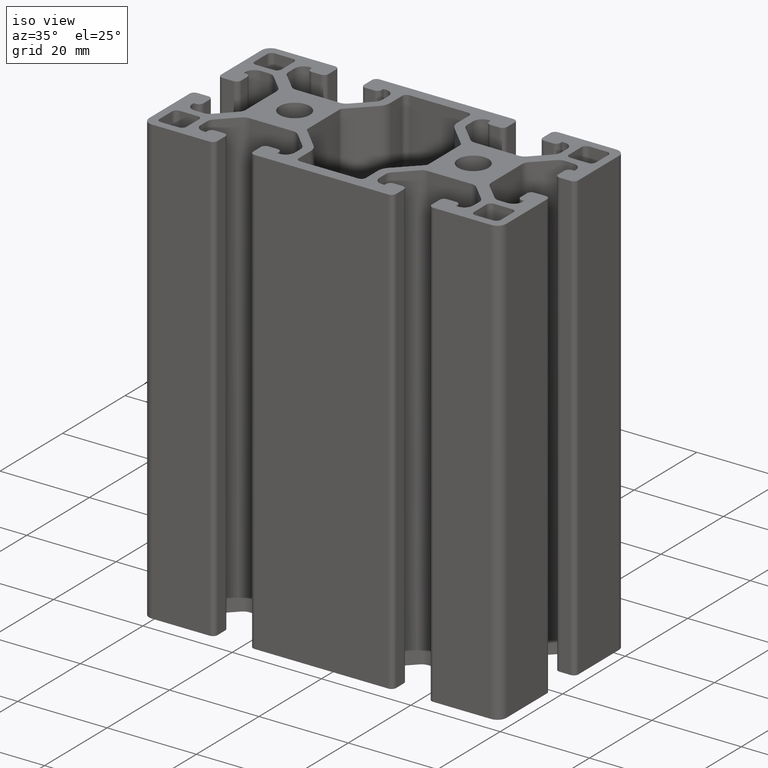
[diagram: clean part render]
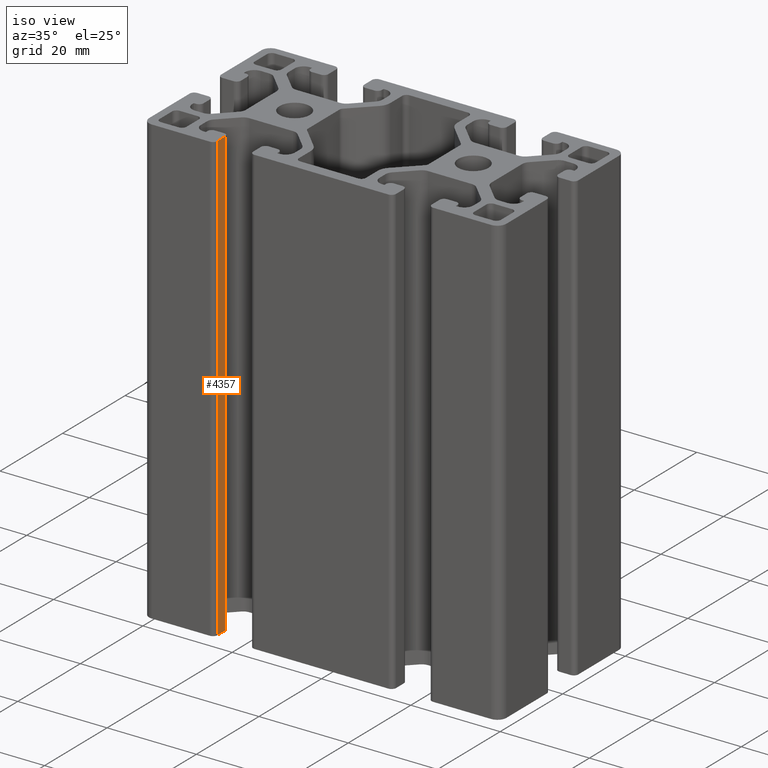
[diagram: same view with one face highlighted and labeled with its STEP entity id]
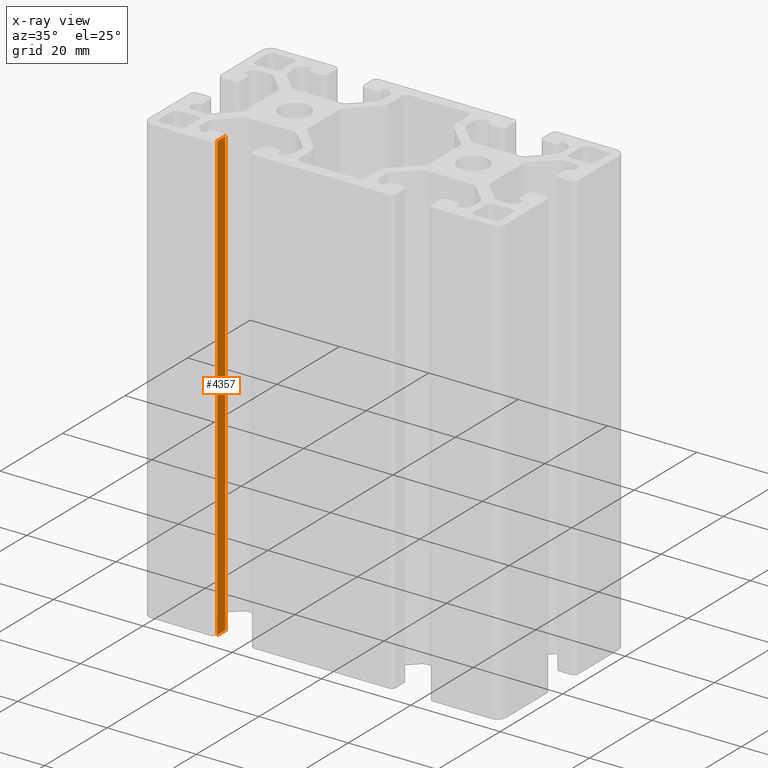
[diagram: x-ray of the same camera — body ghosted, the highlighted face saturated]
A machine part, iso view. The second image highlights one B-rep face of the part: STEP entity #4357.
The next image is the same camera in x-ray: the body ghosted, the highlighted face saturated — about 0% of this face is hidden behind the body in this view.
In plain terms, the highlighted planar face has unit normal (-1, 0, 0).
Its self-contained STEP definition (entity closure, byte-faithful):
#58=PLANE('',#4669);
#304=LINE('',#6778,#756);
#305=LINE('',#6782,#757);
#306=LINE('',#6784,#758);
#307=LINE('',#6785,#759);
#756=VECTOR('',#5448,100.);
#757=VECTOR('',#5453,2.50000399189768);
#758=VECTOR('',#5454,100.);
#759=VECTOR('',#5455,2.50000399189768);
#1139=FACE_OUTER_BOUND('',#1365,.T.);
#1365=EDGE_LOOP('',(#3177,#3178,#3179,#3180));
#1903=VERTEX_POINT('',#6775);
#1904=VERTEX_POINT('',#6777);
#1905=VERTEX_POINT('',#6781);
#1906=VERTEX_POINT('',#6783);
#2429=EDGE_CURVE('',#1904,#1903,#304,.T.);
#2431=EDGE_CURVE('',#1905,#1903,#305,.T.);
#2432=EDGE_CURVE('',#1906,#1905,#306,.T.);
#2433=EDGE_CURVE('',#1904,#1906,#307,.T.);
#3177=ORIENTED_EDGE('',*,*,#2431,.F.);
#3178=ORIENTED_EDGE('',*,*,#2432,.F.);
#3179=ORIENTED_EDGE('',*,*,#2433,.F.);
#3180=ORIENTED_EDGE('',*,*,#2429,.T.);
#4357=ADVANCED_FACE('',(#1139),#58,.F.);
#4669=AXIS2_PLACEMENT_3D('',#6780,#5451,#5452);
#5448=DIRECTION('',(0.,0.,1.));
#5451=DIRECTION('center_axis',(-1.,0.,0.));
#5452=DIRECTION('ref_axis',(0.,-1.,0.));
#5453=DIRECTION('',(0.,1.,0.));
#5454=DIRECTION('',(0.,0.,1.));
#5455=DIRECTION('',(0.,-1.,0.));
#6775=CARTESIAN_POINT('',(-24.,-16.4999980040512,100.));
#6777=CARTESIAN_POINT('',(-24.,-16.4999980040512,0.));
#6778=CARTESIAN_POINT('',(-24.,-16.4999980040512,0.));
#6780=CARTESIAN_POINT('Origin',(-24.,-16.4999980040512,0.));
#6781=CARTESIAN_POINT('',(-24.,-19.0000019959489,100.));
#6782=CARTESIAN_POINT('',(-24.,-8.2499990020256,100.));
#6783=CARTESIAN_POINT('',(-24.,-19.0000019959489,0.));
#6784=CARTESIAN_POINT('',(-24.,-19.0000019959489,0.));
#6785=CARTESIAN_POINT('',(-24.,-8.2499990020256,0.));